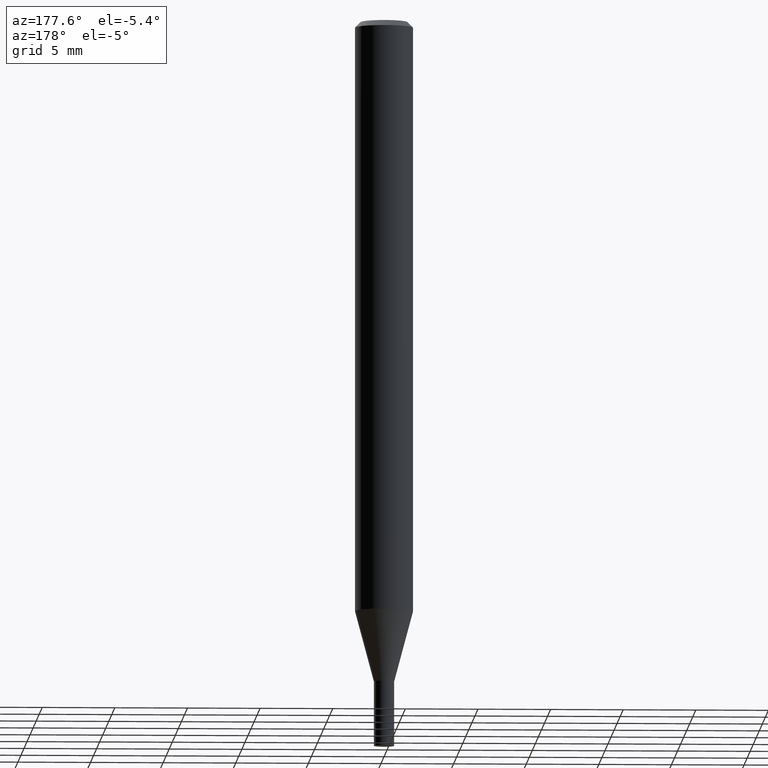
[diagram: clean part render]
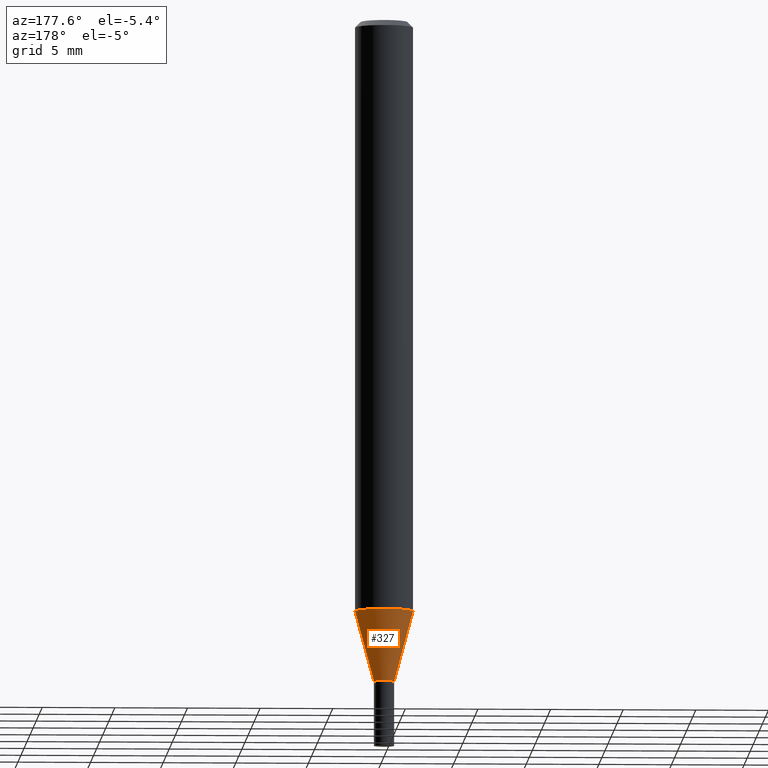
[diagram: same view with one face highlighted and labeled with its STEP entity id]
A machine part, auxiliary view. The second image highlights one B-rep face of the part: STEP entity #327.
In plain terms, the highlighted conical surface has half-angle 15 deg.
Its self-contained STEP definition (entity closure, byte-faithful):
#9 = DIRECTION ( 'NONE',  ( 0.2588190451025213501, 1.565188264969621968E-15, 0.9659258262890682012 ) ) ;
#23 = CARTESIAN_POINT ( 'NONE',  ( -0.07875000000000000056, -5.035263626391749269E-15, -1.602418998652472615 ) ) ;
#27 = DIRECTION ( 'NONE',  ( -2.445468806185136597E-29, 3.491481338843145583E-15, 1.000000000000000000 ) ) ;
#42 = CARTESIAN_POINT ( 'NONE',  ( 0.02754999999999965463, -6.454352402985435430E-15, -1.793499999999999872 ) ) ;
#43 = VERTEX_POINT ( 'NONE', #236 ) ;
#48 = EDGE_CURVE ( 'NONE', #328, #438, #185, .T. ) ;
#64 = CONICAL_SURFACE ( 'NONE', #147, 0.02754999999999965463, 0.2617993877991500740 ) ;
#65 = CARTESIAN_POINT ( 'NONE',  ( 0.07875000000000000056, -6.144724341670621417E-15, -1.602418998652472615 ) ) ;
#101 = DIRECTION ( 'NONE',  ( -2.445468806185136597E-29, 3.491481338843145583E-15, 1.000000000000000000 ) ) ;
#114 = CARTESIAN_POINT ( 'NONE',  ( 4.385948303893042033E-29, -6.261971781215181003E-15, -1.793499999999999872 ) ) ;
#123 = VERTEX_POINT ( 'NONE', #133 ) ;
#132 = CARTESIAN_POINT ( 'NONE',  ( 3.918665675643044057E-29, -5.594816030802827282E-15, -1.602418998652472615 ) ) ;
#133 = CARTESIAN_POINT ( 'NONE',  ( 0.02754999999999965463, -6.454352402985435430E-15, -1.793499999999999872 ) ) ;
#139 = EDGE_CURVE ( 'NONE', #123, #328, #193, .T. ) ;
#147 = AXIS2_PLACEMENT_3D ( 'NONE', #210, #101, #387 ) ;
#179 = ORIENTED_EDGE ( 'NONE', *, *, #405, .T. ) ;
#183 = ORIENTED_EDGE ( 'NONE', *, *, #139, .F. ) ;
#185 = CIRCLE ( 'NONE', #386, 0.07875000000000000056 ) ;
#193 = LINE ( 'NONE', #42, #220 ) ;
#208 = DIRECTION ( 'NONE',  ( -2.445468806185136597E-29, 3.491481338843145583E-15, 1.000000000000000000 ) ) ;
#210 = CARTESIAN_POINT ( 'NONE',  ( 4.385948303893042033E-29, -6.261971781215181003E-15, -1.793499999999999872 ) ) ;
#220 = VECTOR ( 'NONE', #9, 39.37007874015747433 ) ;
#229 = ORIENTED_EDGE ( 'NONE', *, *, #434, .T. ) ;
#236 = CARTESIAN_POINT ( 'NONE',  ( -0.02754999999999965463, -5.550740441952512649E-15, -1.793499999999999872 ) ) ;
#241 = FACE_OUTER_BOUND ( 'NONE', #317, .T. ) ;
#254 = CARTESIAN_POINT ( 'NONE',  ( -0.02754999999999965463, -6.066217257513276029E-15, -1.793499999999999872 ) ) ;
#291 = ORIENTED_EDGE ( 'NONE', *, *, #48, .F. ) ;
#311 = LINE ( 'NONE', #254, #459 ) ;
#317 = EDGE_LOOP ( 'NONE', ( #229, #179, #291, #183 ) ) ;
#318 = DIRECTION ( 'NONE',  ( 1.000000000000000000, -6.982962677686261977E-15, 0.000000000000000000 ) ) ;
#327 = ADVANCED_FACE ( 'NONE', ( #241 ), #64, .T. ) ;
#328 = VERTEX_POINT ( 'NONE', #65 ) ;
#348 = DIRECTION ( 'NONE',  ( 1.000000000000000000, -6.982962677686274599E-15, 0.000000000000000000 ) ) ;
#386 = AXIS2_PLACEMENT_3D ( 'NONE', #132, #27, #318 ) ;
#387 = DIRECTION ( 'NONE',  ( 1.000000000000000000, -6.982962677686274599E-15, 0.000000000000000000 ) ) ;
#403 = DIRECTION ( 'NONE',  ( -0.2588190451025213501, 5.211531920934551042E-15, 0.9659258262890682012 ) ) ;
#405 = EDGE_CURVE ( 'NONE', #43, #438, #311, .T. ) ;
#409 = CIRCLE ( 'NONE', #450, 0.02754999999999965463 ) ;
#434 = EDGE_CURVE ( 'NONE', #123, #43, #409, .T. ) ;
#438 = VERTEX_POINT ( 'NONE', #23 ) ;
#450 = AXIS2_PLACEMENT_3D ( 'NONE', #114, #208, #348 ) ;
#459 = VECTOR ( 'NONE', #403, 39.37007874015747433 ) ;